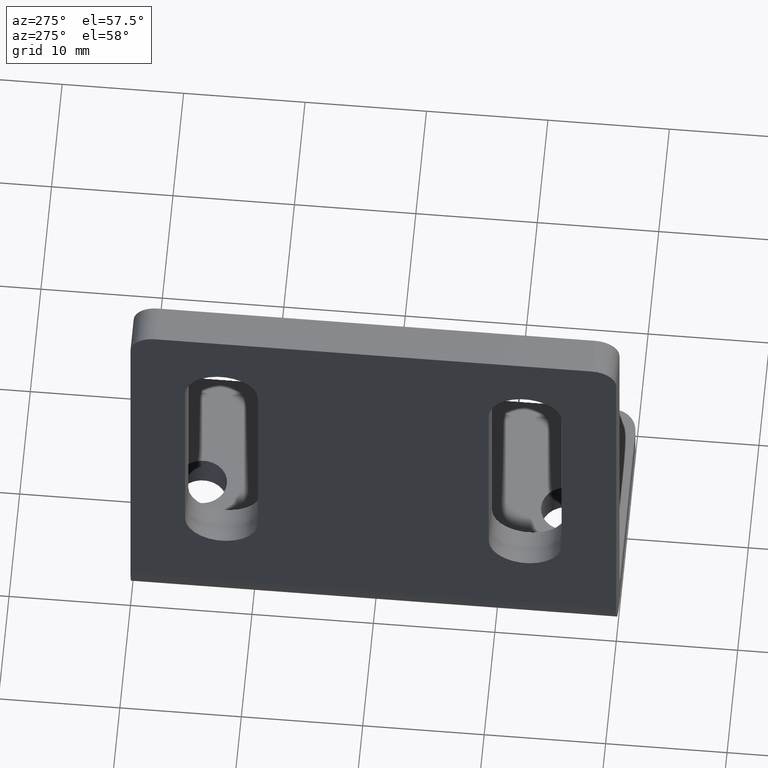
[diagram: clean part render]
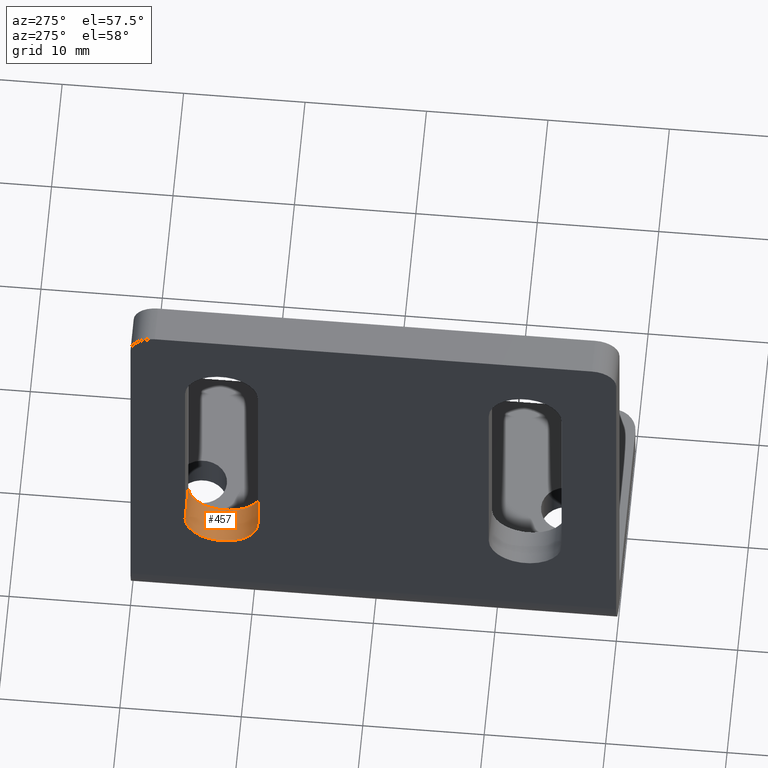
[diagram: same view with one face highlighted and labeled with its STEP entity id]
A machine part, auxiliary view. The second image highlights one B-rep face of the part: STEP entity #457.
In plain terms, the highlighted cylindrical surface (partial cylindrical patch) has radius 3 mm, axis along (1, 0, 0).
Its self-contained STEP definition (entity closure, byte-faithful):
#47=LINE('',#771,#87);
#48=LINE('',#772,#88);
#87=VECTOR('',#625,3.00000000000001);
#88=VECTOR('',#626,3.);
#127=FACE_OUTER_BOUND('',#161,.T.);
#161=EDGE_LOOP('',(#379,#380,#381,#382));
#183=CIRCLE('',#484,3.);
#189=CIRCLE('',#491,3.);
#214=VERTEX_POINT('',#692);
#215=VERTEX_POINT('',#694);
#228=VERTEX_POINT('',#721);
#229=VERTEX_POINT('',#723);
#258=EDGE_CURVE('',#214,#215,#183,.T.);
#272=EDGE_CURVE('',#228,#229,#189,.T.);
#299=EDGE_CURVE('',#214,#229,#47,.T.);
#300=EDGE_CURVE('',#215,#228,#48,.T.);
#379=ORIENTED_EDGE('',*,*,#299,.T.);
#380=ORIENTED_EDGE('',*,*,#272,.F.);
#381=ORIENTED_EDGE('',*,*,#300,.F.);
#382=ORIENTED_EDGE('',*,*,#258,.F.);
#437=CYLINDRICAL_SURFACE('',#507,3.);
#457=ADVANCED_FACE('',(#127),#437,.F.);
#484=AXIS2_PLACEMENT_3D('',#695,#552,#553);
#491=AXIS2_PLACEMENT_3D('',#724,#574,#575);
#507=AXIS2_PLACEMENT_3D('',#770,#623,#624);
#552=DIRECTION('center_axis',(1.,0.,0.));
#553=DIRECTION('ref_axis',(0.,1.,0.));
#574=DIRECTION('center_axis',(-1.,0.,0.));
#575=DIRECTION('ref_axis',(0.,0.,1.));
#623=DIRECTION('center_axis',(1.,0.,0.));
#624=DIRECTION('ref_axis',(0.,0.,1.));
#625=DIRECTION('',(1.,0.,0.));
#626=DIRECTION('',(1.,0.,0.));
#692=CARTESIAN_POINT('',(-20.,9.50239954075775,13.0021584385763));
#694=CARTESIAN_POINT('',(-20.,15.5023995407578,13.0021584385763));
#695=CARTESIAN_POINT('Origin',(-20.,12.5023995407578,13.0021584385763));
#721=CARTESIAN_POINT('',(-17.,15.5023995407578,13.0021584385763));
#723=CARTESIAN_POINT('',(-17.,9.50239954075775,13.0021584385763));
#724=CARTESIAN_POINT('Origin',(-17.,12.5023995407578,13.0021584385763));
#770=CARTESIAN_POINT('Origin',(-20.00000001,12.5023995407578,13.0021584385763));
#771=CARTESIAN_POINT('',(-20.,9.50239954075775,13.0021584385763));
#772=CARTESIAN_POINT('',(-20.,15.5023995407578,13.0021584385763));